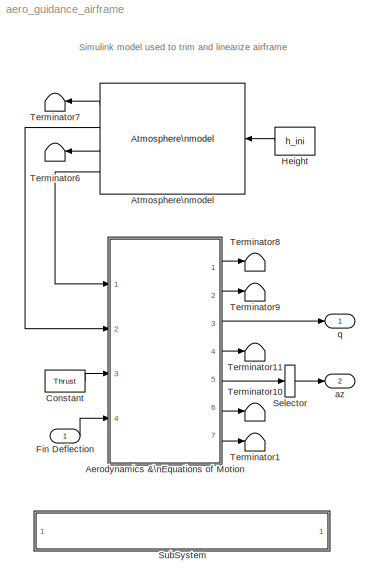
MODEL aero_guidance_airframe
KIND model
CONFIG PreLoadFcn = aero_guid_dat
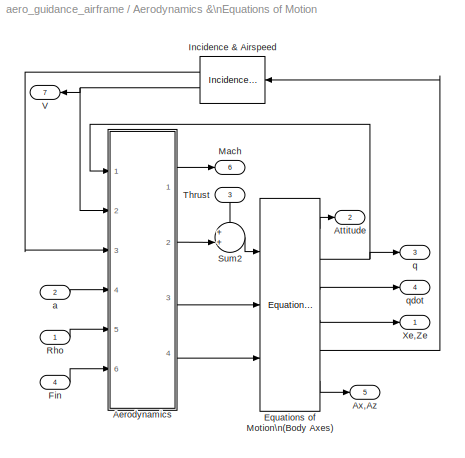
BLOCK [SubSystem] Aerodynamics &\nEquations of Motion
  MinAlgLoopOccurrences = off
  Ports = [4, 7]
  PropExecContextAcrossSSBoundary = on
  RTWSystemCode = Auto
  TreatAsAtomicUnit = off
BLOCK [Reference] Aerodynamics &\nEquations of Motion/ Equations of Motion\n(Body Axes)  REF=aerospace/3DoF\nEquations\nof\nMotion / Equations of Motion\n(Body Axes)  (lib defined in mdl_cf564d925549, slx_1354fe9238a2, +3 more)
  Iyy = Iyy
  Ports = [3, 6]
  ShowPortLabels = on
  SourceBlock = aerospace/3DoF\nEquations\nof\nMotion / Equations of Motion\n(Body Axes)
  SourceType = 3 DOF equations of motion
  alpha_ini = alpha_ini
  g = g
  mass = mass
  pos_ini = [x_ini -h_ini]
  q_ini = q_ini
  theta_ini = theta_ini
  v_ini = v_ini
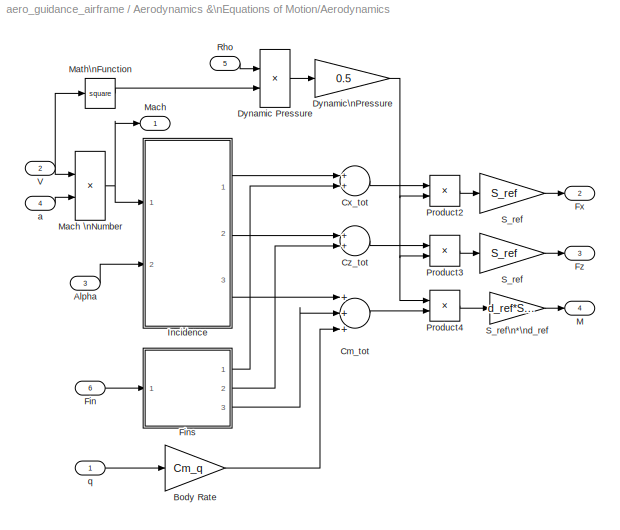
BLOCK [SubSystem] Aerodynamics &\nEquations of Motion/Aerodynamics
  MinAlgLoopOccurrences = off
  Ports = [6, 4]
  PropExecContextAcrossSSBoundary = on
  RTWSystemCode = Auto
  TreatAsAtomicUnit = off
BLOCK [Outport] Aerodynamics &\nEquations of Motion/Aerodynamics/ M
  BusOutputAsStruct = off
  IconDisplay = Port number
  InitialOutput = 0
  Port = 4
BLOCK [Outport] Aerodynamics &\nEquations of Motion/Aerodynamics/ Mach
  BusOutputAsStruct = off
  IconDisplay = Port number
  InitialOutput = 0
BLOCK [Inport] Aerodynamics &\nEquations of Motion/Aerodynamics/Alpha
  IconDisplay = Port number
  LatchInput = off
  Port = 3
BLOCK [Gain] Aerodynamics &\nEquations of Motion/Aerodynamics/Body Rate
  Gain = Cm_q
BLOCK [Sum] Aerodynamics &\nEquations of Motion/Aerodynamics/Cm_tot
  Inputs = +++
  Ports = [3, 1]
BLOCK [Sum] Aerodynamics &\nEquations of Motion/Aerodynamics/Cx_tot
  Ports = [2, 1]
BLOCK [Sum] Aerodynamics &\nEquations of Motion/Aerodynamics/Cz_tot
  Ports = [2, 1]
BLOCK [Product] Aerodynamics &\nEquations of Motion/Aerodynamics/Dynamic Pressure
  Ports = [2, 1]
BLOCK [Gain] Aerodynamics &\nEquations of Motion/Aerodynamics/Dynamic\nPressure
  Gain = 0.5
BLOCK [Inport] Aerodynamics &\nEquations of Motion/Aerodynamics/Fin
  IconDisplay = Port number
  LatchInput = off
  Port = 6
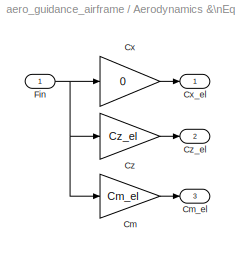
BLOCK [SubSystem] Aerodynamics &\nEquations of Motion/Aerodynamics/Fins
  MinAlgLoopOccurrences = off
  Ports = [1, 3]
  PropExecContextAcrossSSBoundary = on
  RTWSystemCode = Auto
  TreatAsAtomicUnit = off
BLOCK [Gain] Aerodynamics &\nEquations of Motion/Aerodynamics/Fins/Cm
  Gain = Cm_el
BLOCK [Outport] Aerodynamics &\nEquations of Motion/Aerodynamics/Fins/Cm_el
  BusOutputAsStruct = off
  IconDisplay = Port number
  InitialOutput = 0
  Port = 3
BLOCK [Gain] Aerodynamics &\nEquations of Motion/Aerodynamics/Fins/Cx
  Gain = 0
BLOCK [Outport] Aerodynamics &\nEquations of Motion/Aerodynamics/Fins/Cx_el
  BusOutputAsStruct = off
  IconDisplay = Port number
  InitialOutput = 0
BLOCK [Gain] Aerodynamics &\nEquations of Motion/Aerodynamics/Fins/Cz
  Gain = Cz_el
BLOCK [Outport] Aerodynamics &\nEquations of Motion/Aerodynamics/Fins/Cz_el
  BusOutputAsStruct = off
  IconDisplay = Port number
  InitialOutput = 0
  Port = 2
BLOCK [Inport] Aerodynamics &\nEquations of Motion/Aerodynamics/Fins/Fin
  IconDisplay = Port number
  LatchInput = off
  Port = 1
BLOCK [Outport] Aerodynamics &\nEquations of Motion/Aerodynamics/Fx
  BusOutputAsStruct = off
  IconDisplay = Port number
  InitialOutput = [0]
  Port = 2
BLOCK [Outport] Aerodynamics &\nEquations of Motion/Aerodynamics/Fz
  BusOutputAsStruct = off
  IconDisplay = Port number
  InitialOutput = 0
  Port = 3
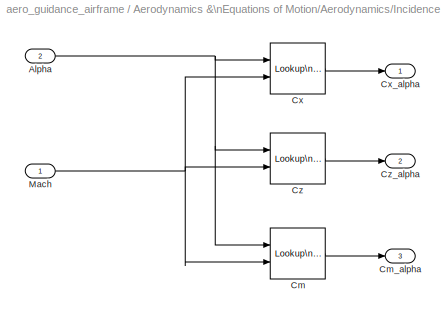
BLOCK [SubSystem] Aerodynamics &\nEquations of Motion/Aerodynamics/Incidence
  MinAlgLoopOccurrences = off
  Ports = [2, 3]
  PropExecContextAcrossSSBoundary = on
  RTWSystemCode = Auto
  TreatAsAtomicUnit = off
BLOCK [Inport] Aerodynamics &\nEquations of Motion/Aerodynamics/Incidence/Alpha
  IconDisplay = Port number
  LatchInput = off
  Port = 2
BLOCK [Reference] Aerodynamics &\nEquations of Motion/Aerodynamics/Incidence/Cm  REF=simulink/Lookup\nTables/Lookup\nTable (n-D)
  Ports = [2, 1]
  SourceBlock = simulink/Lookup\nTables/Lookup\nTable (n-D)
  SourceType = LookupNDInterp
  bp1 = alpha_vec
  bp2 = Mach_vec
  bp3 = [1:3]
  bp4 = [1:3]
  bpcell = { [1:3], [1:3] }
  cacheBpFlag = on
  explicitNumDims = 2
  extrapMethod = Linear
  interpMethod = Linear
  numDimsPopupSelect = 2
  rangeErrorMode = None
  searchMode = Binary Search
  tableData = Cm_alpha
  vectorInputFlag = off
BLOCK [Outport] Aerodynamics &\nEquations of Motion/Aerodynamics/Incidence/Cm_alpha
  BusOutputAsStruct = off
  IconDisplay = Port number
  InitialOutput = 0
  Port = 3
BLOCK [Reference] Aerodynamics &\nEquations of Motion/Aerodynamics/Incidence/Cx  REF=simulink/Lookup\nTables/Lookup\nTable (n-D)
  Ports = [2, 1]
  SourceBlock = simulink/Lookup\nTables/Lookup\nTable (n-D)
  SourceType = LookupNDInterp
  bp1 = alpha_vec
  bp2 = Mach_vec
  bp3 = [1:3]
  bp4 = [1:3]
  bpcell = { [1:3], [1:3] }
  cacheBpFlag = on
  explicitNumDims = 2
  extrapMethod = Linear
  interpMethod = Linear
  numDimsPopupSelect = 2
  rangeErrorMode = None
  searchMode = Binary Search
  tableData = Cx_alpha
  vectorInputFlag = off
BLOCK [Outport] Aerodynamics &\nEquations of Motion/Aerodynamics/Incidence/Cx_alpha
  BusOutputAsStruct = off
  IconDisplay = Port number
  InitialOutput = 0
BLOCK [Reference] Aerodynamics &\nEquations of Motion/Aerodynamics/Incidence/Cz  REF=simulink/Lookup\nTables/Lookup\nTable (n-D)
  Ports = [2, 1]
  SourceBlock = simulink/Lookup\nTables/Lookup\nTable (n-D)
  SourceType = LookupNDInterp
  bp1 = alpha_vec
  bp2 = Mach_vec
  bp3 = [1:3]
  bp4 = [1:3]
  bpcell = { [1:3], [1:3] }
  cacheBpFlag = on
  explicitNumDims = 2
  extrapMethod = Linear
  interpMethod = Linear
  numDimsPopupSelect = 2
  rangeErrorMode = None
  searchMode = Binary Search
  tableData = Cz_alpha
  vectorInputFlag = off
BLOCK [Outport] Aerodynamics &\nEquations of Motion/Aerodynamics/Incidence/Cz_alpha
  BusOutputAsStruct = off
  IconDisplay = Port number
  InitialOutput = 0
  Port = 2
BLOCK [Inport] Aerodynamics &\nEquations of Motion/Aerodynamics/Incidence/Mach
  IconDisplay = Port number
  LatchInput = off
  Port = 1
BLOCK [Product] Aerodynamics &\nEquations of Motion/Aerodynamics/Mach \nNumber
  Inputs = */
  Ports = [2, 1]
BLOCK [Math] Aerodynamics &\nEquations of Motion/Aerodynamics/Math\nFunction
  Operator = square
  Ports = [1, 1]
BLOCK [Product] Aerodynamics &\nEquations of Motion/Aerodynamics/Product2
  Ports = [2, 1]
BLOCK [Product] Aerodynamics &\nEquations of Motion/Aerodynamics/Product3
  Ports = [2, 1]
BLOCK [Product] Aerodynamics &\nEquations of Motion/Aerodynamics/Product4
  Ports = [2, 1]
BLOCK [Inport] Aerodynamics &\nEquations of Motion/Aerodynamics/Rho
  IconDisplay = Port number
  LatchInput = off
  Port = 5
BLOCK [Gain] Aerodynamics &\nEquations of Motion/Aerodynamics/S_ref
  Gain = S_ref
BLOCK [Gain] Aerodynamics &\nEquations of Motion/Aerodynamics/S_ref 
  Gain = S_ref
BLOCK [Gain] Aerodynamics &\nEquations of Motion/Aerodynamics/S_ref\n*\nd_ref
  Gain = d_ref*S_ref
BLOCK [Inport] Aerodynamics &\nEquations of Motion/Aerodynamics/V
  IconDisplay = Port number
  LatchInput = off
  Port = 2
BLOCK [Inport] Aerodynamics &\nEquations of Motion/Aerodynamics/a
  IconDisplay = Port number
  LatchInput = off
  Port = 4
BLOCK [Inport] Aerodynamics &\nEquations of Motion/Aerodynamics/q
  IconDisplay = Port number
  LatchInput = off
  Port = 1
BLOCK [Outport] Aerodynamics &\nEquations of Motion/Attitude
  BusOutputAsStruct = off
  IconDisplay = Port number
  InitialOutput = 0
  Port = 2
BLOCK [Outport] Aerodynamics &\nEquations of Motion/Ax,Az
  BusOutputAsStruct = off
  IconDisplay = Port number
  InitialOutput = 0
  Port = 5
BLOCK [Inport] Aerodynamics &\nEquations of Motion/Fin
  IconDisplay = Port number
  LatchInput = off
  Port = 4
BLOCK [Reference] Aerodynamics &\nEquations of Motion/Incidence & Airspeed  REF=aerospace/3DoF\nEquations\nof\nMotion /Incidence \n& Airspeed  (lib defined in mdl_cf564d925549, slx_1354fe9238a2, +3 more)
  Ports = [1, 2]
  ShowPortLabels = on
  SourceBlock = aerospace/3DoF\nEquations\nof\nMotion /Incidence \n& Airspeed
  SourceType = Incidence and Airspeed
BLOCK [Outport] Aerodynamics &\nEquations of Motion/Mach
  BusOutputAsStruct = off
  IconDisplay = Port number
  InitialOutput = 0
  Port = 6
BLOCK [Inport] Aerodynamics &\nEquations of Motion/Rho
  IconDisplay = Port number
  LatchInput = off
  Port = 1
BLOCK [Sum] Aerodynamics &\nEquations of Motion/Sum2
  IconShape = round
  Inputs = ++|
  Ports = [2, 1]
BLOCK [Inport] Aerodynamics &\nEquations of Motion/Thrust
  IconDisplay = Port number
  LatchInput = off
  Port = 3
BLOCK [Outport] Aerodynamics &\nEquations of Motion/V
  BusOutputAsStruct = off
  IconDisplay = Port number
  InitialOutput = 0
  Port = 7
BLOCK [Outport] Aerodynamics &\nEquations of Motion/Xe,Ze
  BusOutputAsStruct = off
  IconDisplay = Port number
  InitialOutput = 0
BLOCK [Inport] Aerodynamics &\nEquations of Motion/a
  IconDisplay = Port number
  LatchInput = off
  Port = 2
BLOCK [Outport] Aerodynamics &\nEquations of Motion/q
  BusOutputAsStruct = off
  IconDisplay = Port number
  InitialOutput = 0
  Port = 3
BLOCK [Outport] Aerodynamics &\nEquations of Motion/qdot
  BusOutputAsStruct = off
  IconDisplay = Port number
  InitialOutput = 0
  Port = 4
BLOCK [Reference] Atmosphere\nmodel  REF=aerospace/Atmosphere/Atmosphere\nmodel  (lib defined in mdl_cf564d925549, slx_1354fe9238a2, +3 more)
  Ports = [1, 4]
  ShowPortLabels = on
  SourceBlock = aerospace/Atmosphere/Atmosphere\nmodel
  SourceType = Atmosphere Model
BLOCK [Constant] Constant
  Value = Thrust
BLOCK [Inport] Fin Deflection
  IconDisplay = Port number
  LatchInput = off
  Port = 1
BLOCK [Constant] Height
  Value = h_ini
BLOCK [Selector] Selector
  Elements = [2]
  InputPortWidth = 2
  Ports = [1, 1]
BLOCK [SubSystem] SubSystem
  MaskDisplay = disp('Double-click here to generate linearizations')
  MaskIconFrame = on
  MaskIconOpaque = on
  MaskIconRotate = none
  MaskIconUnits = autoscale
  MinAlgLoopOccurrences = off
  OpenFcn = aero_lin_aero
  Ports = []
  PropExecContextAcrossSSBoundary = on
  RTWSystemCode = Auto
  TreatAsAtomicUnit = off
BLOCK [Terminator] Terminator1
BLOCK [Terminator] Terminator10
BLOCK [Terminator] Terminator11
BLOCK [Terminator] Terminator6
BLOCK [Terminator] Terminator7
BLOCK [Terminator] Terminator8
BLOCK [Terminator] Terminator9
BLOCK [Outport] az
  BusOutputAsStruct = off
  IconDisplay = Port number
  InitialOutput = 0
  Port = 2
BLOCK [Outport] q
  BusOutputAsStruct = off
  IconDisplay = Port number
  InitialOutput = 0
ANNOTATION (root): Simulink model used to trim and linearize airframe
LINE Aerodynamics &\nEquations of Motion/ Equations of Motion\n(Body Axes):1 -> Aerodynamics &\nEquations of Motion/Attitude:1
NET Aerodynamics &\nEquations of Motion/ Equations of Motion\n(Body Axes):2 -> Aerodynamics &\nEquations of Motion/Aerodynamics:1, Aerodynamics &\nEquations of Motion/q:1
LINE Aerodynamics &\nEquations of Motion/ Equations of Motion\n(Body Axes):3 -> Aerodynamics &\nEquations of Motion/qdot:1
LINE Aerodynamics &\nEquations of Motion/ Equations of Motion\n(Body Axes):4 -> Aerodynamics &\nEquations of Motion/Xe,Ze:1
LINE Aerodynamics &\nEquations of Motion/ Equations of Motion\n(Body Axes):5 -> Aerodynamics &\nEquations of Motion/Incidence & Airspeed:1
LINE Aerodynamics &\nEquations of Motion/ Equations of Motion\n(Body Axes):6 -> Aerodynamics &\nEquations of Motion/Ax,Az:1
LINE Aerodynamics &\nEquations of Motion/Aerodynamics/Alpha:1 -> Aerodynamics &\nEquations of Motion/Aerodynamics/Incidence:2
LINE Aerodynamics &\nEquations of Motion/Aerodynamics/Body Rate:1 -> Aerodynamics &\nEquations of Motion/Aerodynamics/Cm_tot:3
LINE Aerodynamics &\nEquations of Motion/Aerodynamics/Cm_tot:1 -> Aerodynamics &\nEquations of Motion/Aerodynamics/Product4:2
LINE Aerodynamics &\nEquations of Motion/Aerodynamics/Cx_tot:1 -> Aerodynamics &\nEquations of Motion/Aerodynamics/Product2:1
LINE Aerodynamics &\nEquations of Motion/Aerodynamics/Cz_tot:1 -> Aerodynamics &\nEquations of Motion/Aerodynamics/Product3:1
LINE Aerodynamics &\nEquations of Motion/Aerodynamics/Dynamic Pressure:1 -> Aerodynamics &\nEquations of Motion/Aerodynamics/Dynamic\nPressure:1
NET Aerodynamics &\nEquations of Motion/Aerodynamics/Dynamic\nPressure:1 -> Aerodynamics &\nEquations of Motion/Aerodynamics/Product2:2, Aerodynamics &\nEquations of Motion/Aerodynamics/Product3:2, Aerodynamics &\nEquations of Motion/Aerodynamics/Product4:1
LINE Aerodynamics &\nEquations of Motion/Aerodynamics/Fin:1 -> Aerodynamics &\nEquations of Motion/Aerodynamics/Fins:1
LINE Aerodynamics &\nEquations of Motion/Aerodynamics/Fins/Cm:1 -> Aerodynamics &\nEquations of Motion/Aerodynamics/Fins/Cm_el:1
LINE Aerodynamics &\nEquations of Motion/Aerodynamics/Fins/Cx:1 -> Aerodynamics &\nEquations of Motion/Aerodynamics/Fins/Cx_el:1
LINE Aerodynamics &\nEquations of Motion/Aerodynamics/Fins/Cz:1 -> Aerodynamics &\nEquations of Motion/Aerodynamics/Fins/Cz_el:1
NET Aerodynamics &\nEquations of Motion/Aerodynamics/Fins/Fin:1 -> Aerodynamics &\nEquations of Motion/Aerodynamics/Fins/Cm:1, Aerodynamics &\nEquations of Motion/Aerodynamics/Fins/Cx:1, Aerodynamics &\nEquations of Motion/Aerodynamics/Fins/Cz:1
LINE Aerodynamics &\nEquations of Motion/Aerodynamics/Fins:1 -> Aerodynamics &\nEquations of Motion/Aerodynamics/Cx_tot:2
LINE Aerodynamics &\nEquations of Motion/Aerodynamics/Fins:2 -> Aerodynamics &\nEquations of Motion/Aerodynamics/Cz_tot:2
LINE Aerodynamics &\nEquations of Motion/Aerodynamics/Fins:3 -> Aerodynamics &\nEquations of Motion/Aerodynamics/Cm_tot:2
NET Aerodynamics &\nEquations of Motion/Aerodynamics/Incidence/Alpha:1 -> Aerodynamics &\nEquations of Motion/Aerodynamics/Incidence/Cm:1, Aerodynamics &\nEquations of Motion/Aerodynamics/Incidence/Cx:1, Aerodynamics &\nEquations of Motion/Aerodynamics/Incidence/Cz:1
LINE Aerodynamics &\nEquations of Motion/Aerodynamics/Incidence/Cm:1 -> Aerodynamics &\nEquations of Motion/Aerodynamics/Incidence/Cm_alpha:1
LINE Aerodynamics &\nEquations of Motion/Aerodynamics/Incidence/Cx:1 -> Aerodynamics &\nEquations of Motion/Aerodynamics/Incidence/Cx_alpha:1
LINE Aerodynamics &\nEquations of Motion/Aerodynamics/Incidence/Cz:1 -> Aerodynamics &\nEquations of Motion/Aerodynamics/Incidence/Cz_alpha:1
NET Aerodynamics &\nEquations of Motion/Aerodynamics/Incidence/Mach:1 -> Aerodynamics &\nEquations of Motion/Aerodynamics/Incidence/Cm:2, Aerodynamics &\nEquations of Motion/Aerodynamics/Incidence/Cx:2, Aerodynamics &\nEquations of Motion/Aerodynamics/Incidence/Cz:2
LINE Aerodynamics &\nEquations of Motion/Aerodynamics/Incidence:1 -> Aerodynamics &\nEquations of Motion/Aerodynamics/Cx_tot:1
LINE Aerodynamics &\nEquations of Motion/Aerodynamics/Incidence:2 -> Aerodynamics &\nEquations of Motion/Aerodynamics/Cz_tot:1
LINE Aerodynamics &\nEquations of Motion/Aerodynamics/Incidence:3 -> Aerodynamics &\nEquations of Motion/Aerodynamics/Cm_tot:1
NET Aerodynamics &\nEquations of Motion/Aerodynamics/Mach \nNumber:1 -> Aerodynamics &\nEquations of Motion/Aerodynamics/ Mach:1, Aerodynamics &\nEquations of Motion/Aerodynamics/Incidence:1
LINE Aerodynamics &\nEquations of Motion/Aerodynamics/Math\nFunction:1 -> Aerodynamics &\nEquations of Motion/Aerodynamics/Dynamic Pressure:2
LINE Aerodynamics &\nEquations of Motion/Aerodynamics/Product2:1 -> Aerodynamics &\nEquations of Motion/Aerodynamics/S_ref:1
LINE Aerodynamics &\nEquations of Motion/Aerodynamics/Product3:1 -> Aerodynamics &\nEquations of Motion/Aerodynamics/S_ref :1
LINE Aerodynamics &\nEquations of Motion/Aerodynamics/Product4:1 -> Aerodynamics &\nEquations of Motion/Aerodynamics/S_ref\n*\nd_ref:1
LINE Aerodynamics &\nEquations of Motion/Aerodynamics/Rho:1 -> Aerodynamics &\nEquations of Motion/Aerodynamics/Dynamic Pressure:1
LINE Aerodynamics &\nEquations of Motion/Aerodynamics/S_ref :1 -> Aerodynamics &\nEquations of Motion/Aerodynamics/Fz:1
LINE Aerodynamics &\nEquations of Motion/Aerodynamics/S_ref:1 -> Aerodynamics &\nEquations of Motion/Aerodynamics/Fx:1
LINE Aerodynamics &\nEquations of Motion/Aerodynamics/S_ref\n*\nd_ref:1 -> Aerodynamics &\nEquations of Motion/Aerodynamics/ M:1
NET Aerodynamics &\nEquations of Motion/Aerodynamics/V:1 -> Aerodynamics &\nEquations of Motion/Aerodynamics/Mach \nNumber:1, Aerodynamics &\nEquations of Motion/Aerodynamics/Math\nFunction:1
LINE Aerodynamics &\nEquations of Motion/Aerodynamics/a:1 -> Aerodynamics &\nEquations of Motion/Aerodynamics/Mach \nNumber:2
LINE Aerodynamics &\nEquations of Motion/Aerodynamics/q:1 -> Aerodynamics &\nEquations of Motion/Aerodynamics/Body Rate:1
LINE Aerodynamics &\nEquations of Motion/Aerodynamics:1 -> Aerodynamics &\nEquations of Motion/Mach:1
LINE Aerodynamics &\nEquations of Motion/Aerodynamics:2 -> Aerodynamics &\nEquations of Motion/Sum2:2
LINE Aerodynamics &\nEquations of Motion/Aerodynamics:3 -> Aerodynamics &\nEquations of Motion/ Equations of Motion\n(Body Axes):2
LINE Aerodynamics &\nEquations of Motion/Aerodynamics:4 -> Aerodynamics &\nEquations of Motion/ Equations of Motion\n(Body Axes):3
LINE Aerodynamics &\nEquations of Motion/Fin:1 -> Aerodynamics &\nEquations of Motion/Aerodynamics:6
LINE Aerodynamics &\nEquations of Motion/Incidence & Airspeed:1 -> Aerodynamics &\nEquations of Motion/Aerodynamics:3
NET Aerodynamics &\nEquations of Motion/Incidence & Airspeed:2 -> Aerodynamics &\nEquations of Motion/Aerodynamics:2, Aerodynamics &\nEquations of Motion/V:1
LINE Aerodynamics &\nEquations of Motion/Rho:1 -> Aerodynamics &\nEquations of Motion/Aerodynamics:5
LINE Aerodynamics &\nEquations of Motion/Sum2:1 -> Aerodynamics &\nEquations of Motion/ Equations of Motion\n(Body Axes):1
LINE Aerodynamics &\nEquations of Motion/Thrust:1 -> Aerodynamics &\nEquations of Motion/Sum2:1
LINE Aerodynamics &\nEquations of Motion/a:1 -> Aerodynamics &\nEquations of Motion/Aerodynamics:4
LINE Aerodynamics &\nEquations of Motion:1 -> Terminator8:1
LINE Aerodynamics &\nEquations of Motion:2 -> Terminator9:1
LINE Aerodynamics &\nEquations of Motion:3 -> q:1
LINE Aerodynamics &\nEquations of Motion:4 -> Terminator11:1
LINE Aerodynamics &\nEquations of Motion:5 -> Selector:1
LINE Aerodynamics &\nEquations of Motion:6 -> Terminator10:1
LINE Aerodynamics &\nEquations of Motion:7 -> Terminator1:1
LINE Atmosphere\nmodel:1 -> Terminator7:1
LINE Atmosphere\nmodel:2 -> Aerodynamics &\nEquations of Motion:2
LINE Atmosphere\nmodel:3 -> Terminator6:1
LINE Atmosphere\nmodel:4 -> Aerodynamics &\nEquations of Motion:1
LINE Constant:1 -> Aerodynamics &\nEquations of Motion:3
LINE Fin Deflection:1 -> Aerodynamics &\nEquations of Motion:4
LINE Height:1 -> Atmosphere\nmodel:1
LINE Selector:1 -> az:1
note: NET lines group one-source signal fan-out (src -> all destinations, sorted); 1:1 wires keep LINE
